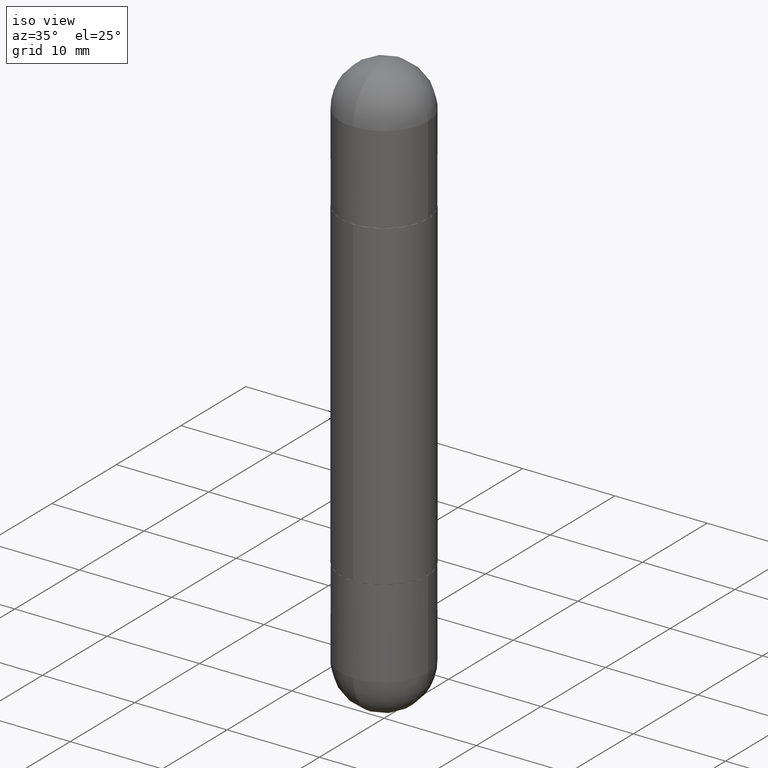
[diagram: clean part render]
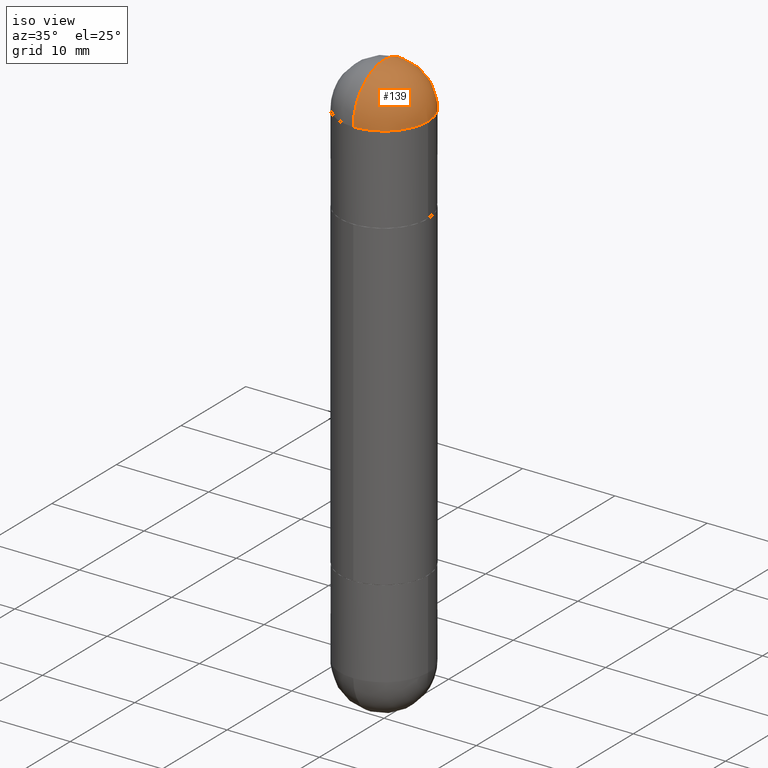
[diagram: same view with one face highlighted and labeled with its STEP entity id]
A machine part, iso view. The second image highlights one B-rep face of the part: STEP entity #139.
In plain terms, the highlighted spherical surface has radius 4.7625 mm.
Its self-contained STEP definition (entity closure, byte-faithful):
#9 = DIRECTION ( 'NONE',  ( 2.445468806185136597E-29, -3.491481338843145583E-15, 1.000000000000000000 ) ) ;
#20 = ORIENTED_EDGE ( 'NONE', *, *, #202, .T. ) ;
#55 = CARTESIAN_POINT ( 'NONE',  ( 5.324026836389243254E-29, -8.548232964214825368E-15, -0.1875000000000006661 ) ) ;
#61 = CARTESIAN_POINT ( 'NONE',  ( 5.790569421510013204E-29, -9.191404651505909607E-15, -3.414809992080329023E-16 ) ) ;
#107 = ORIENTED_EDGE ( 'NONE', *, *, #627, .F. ) ;
#136 = CARTESIAN_POINT ( 'NONE',  ( 1.309305502066231017E-15, 0.1874999999999918954, -0.1875000000000000278 ) ) ;
#139 = ADVANCED_FACE ( 'NONE', ( #758 ), #452, .T. ) ;
#174 = CARTESIAN_POINT ( 'NONE',  ( 0.1875000000000000555, -8.729576217442571356E-15, -0.1875000000000006661 ) ) ;
#183 = CIRCLE ( 'NONE', #699, 0.1875000000000003331 ) ;
#202 = EDGE_CURVE ( 'NONE', #595, #807, #183, .T. ) ;
#205 = AXIS2_PLACEMENT_3D ( 'NONE', #55, #381, #637 ) ;
#254 = DIRECTION ( 'NONE',  ( 2.445468806185136597E-29, -3.491481338843145583E-15, 1.000000000000000000 ) ) ;
#280 = CARTESIAN_POINT ( 'NONE',  ( 5.324026836389243254E-29, -8.548232964214825368E-15, -0.1875000000000006661 ) ) ;
#304 = ORIENTED_EDGE ( 'NONE', *, *, #768, .T. ) ;
#306 = AXIS2_PLACEMENT_3D ( 'NONE', #631, #9, #571 ) ;
#381 = DIRECTION ( 'NONE',  ( -1.000000000000000000, 6.982962677686265922E-15, 4.883557194083112340E-29 ) ) ;
#389 = CARTESIAN_POINT ( 'NONE',  ( 5.655146614303128380E-29, -8.074050596074775072E-15, -0.1875000000000006661 ) ) ;
#401 = CARTESIAN_POINT ( 'NONE',  ( -1.286343374582108525E-15, -0.1875000000000084932, -0.1875000000000013045 ) ) ;
#414 = CIRCLE ( 'NONE', #523, 0.1875000000000000555 ) ;
#421 = VERTEX_POINT ( 'NONE', #174 ) ;
#449 = DIRECTION ( 'NONE',  ( 6.982962677686266711E-15, 1.000000000000000000, 3.460340791974727494E-15 ) ) ;
#452 = SPHERICAL_SURFACE ( 'NONE', #488, 0.1875000000000003331 ) ;
#456 = DIRECTION ( 'NONE',  ( 6.860497997771530774E-15, 1.000000000000000000, 0.000000000000000000 ) ) ;
#466 = CIRCLE ( 'NONE', #205, 0.1875000000000003331 ) ;
#488 = AXIS2_PLACEMENT_3D ( 'NONE', #513, #770, #449 ) ;
#509 = DIRECTION ( 'NONE',  ( 1.000000000000000000, -6.982962677686270655E-15, 0.000000000000000000 ) ) ;
#513 = CARTESIAN_POINT ( 'NONE',  ( 5.324026836389243254E-29, -8.548232964214825368E-15, -0.1875000000000006661 ) ) ;
#523 = AXIS2_PLACEMENT_3D ( 'NONE', #389, #254, #509 ) ;
#534 = CIRCLE ( 'NONE', #306, 0.1875000000000000555 ) ;
#535 = ORIENTED_EDGE ( 'NONE', *, *, #779, .T. ) ;
#538 = DIRECTION ( 'NONE',  ( 1.000000000000000000, -6.860497997771530774E-15, -4.840798879624142912E-29 ) ) ;
#571 = DIRECTION ( 'NONE',  ( 1.000000000000000000, -6.982962677686270655E-15, 0.000000000000000000 ) ) ;
#595 = VERTEX_POINT ( 'NONE', #61 ) ;
#618 = VERTEX_POINT ( 'NONE', #136 ) ;
#627 = EDGE_CURVE ( 'NONE', #595, #618, #466, .T. ) ;
#631 = CARTESIAN_POINT ( 'NONE',  ( 5.655146614303128380E-29, -8.074050596074775072E-15, -0.1875000000000006661 ) ) ;
#637 = DIRECTION ( 'NONE',  ( -6.982962677686265922E-15, -1.000000000000000000, 0.000000000000000000 ) ) ;
#699 = AXIS2_PLACEMENT_3D ( 'NONE', #280, #538, #456 ) ;
#741 = EDGE_LOOP ( 'NONE', ( #107, #20, #304, #535 ) ) ;
#758 = FACE_OUTER_BOUND ( 'NONE', #741, .T. ) ;
#768 = EDGE_CURVE ( 'NONE', #807, #421, #534, .T. ) ;
#770 = DIRECTION ( 'NONE',  ( 1.000000000000000000, -6.982962677686266711E-15, -4.883557194083113462E-29 ) ) ;
#779 = EDGE_CURVE ( 'NONE', #421, #618, #414, .T. ) ;
#807 = VERTEX_POINT ( 'NONE', #401 ) ;